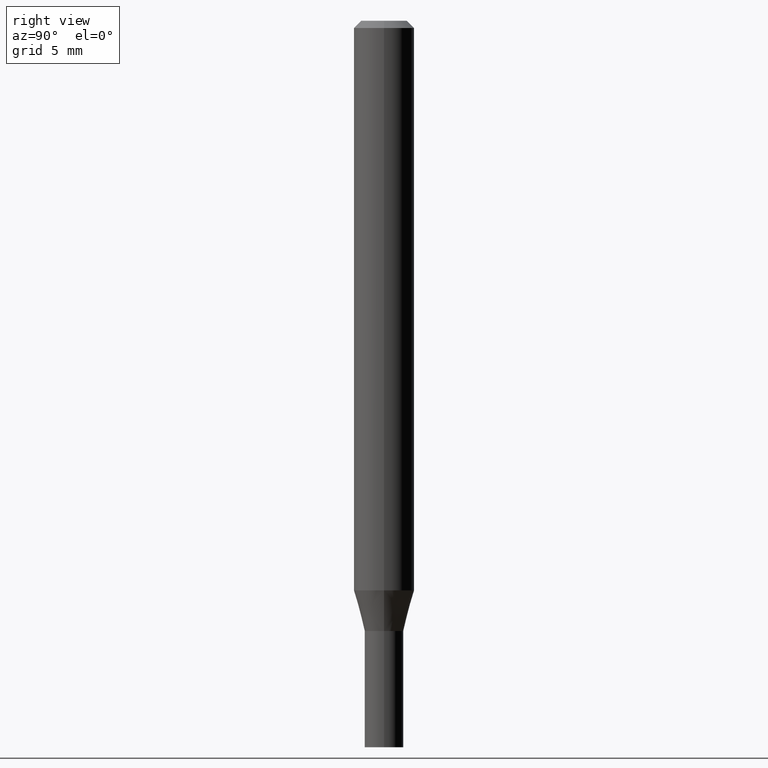
[diagram: clean part render]
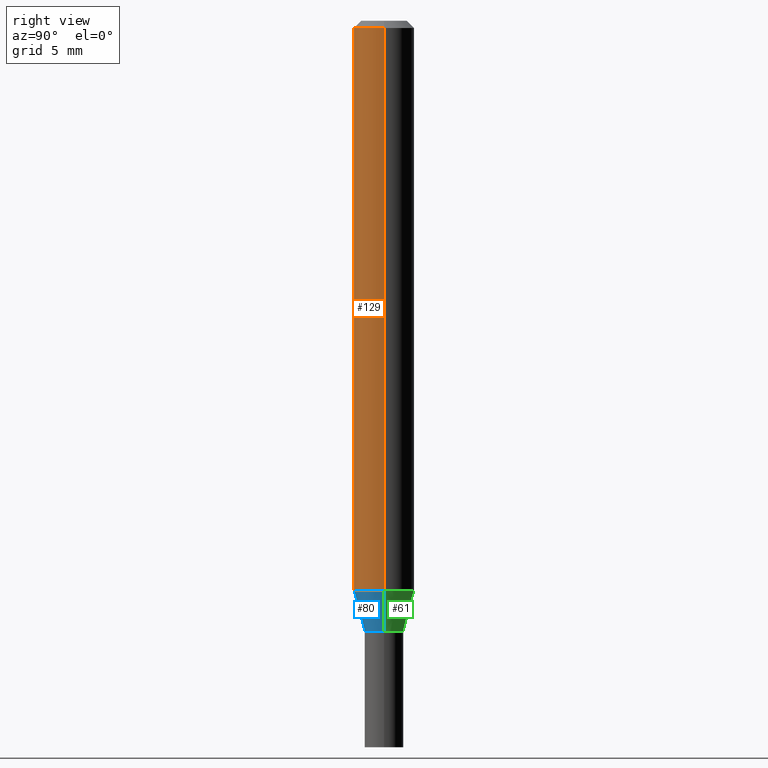
[diagram: same view with three faces highlighted in distinct colors, each labeled with its STEP entity id]
A machine part, right view with three faces highlighted in distinct colors.
Their STEP definitions:

[orange] entity #129 — the highlighted cylindrical surface (edge-blend (fillet) strip) has radius 1.5875 mm, axis along (-0, 0, 1).
#17 = EDGE_CURVE ( 'NONE', #111, #280, #323, .T. ) ;
#32 = CARTESIAN_POINT ( 'NONE',  ( -0.06250000000000000000, -1.635138303972230884E-15, -0.01499999999999999944 ) ) ;
#41 = CARTESIAN_POINT ( 'NONE',  ( 2.875941884550600352E-29, -4.106082807561939527E-15, -1.176028856829701263 ) ) ;
#58 = VERTEX_POINT ( 'NONE', #395 ) ;
#65 = VERTEX_POINT ( 'NONE', #32 ) ;
#67 = CARTESIAN_POINT ( 'NONE',  ( -0.06250000000000000000, 4.440892098500626162E-16, -3.074334431409316114E-30 ) ) ;
#70 = DIRECTION ( 'NONE',  ( -2.445468806185136877E-29, 3.491481338843145188E-15, 1.000000000000000000 ) ) ;
#82 = DIRECTION ( 'NONE',  ( 1.000000000000000000, -6.982962677686270655E-15, 0.000000000000000000 ) ) ;
#91 = DIRECTION ( 'NONE',  ( -2.445468806185136597E-29, 3.491481338843145583E-15, 1.000000000000000000 ) ) ;
#97 = VECTOR ( 'NONE', #175, 39.37007874015748143 ) ;
#111 = VERTEX_POINT ( 'NONE', #218 ) ;
#113 = ORIENTED_EDGE ( 'NONE', *, *, #224, .F. ) ;
#127 = ORIENTED_EDGE ( 'NONE', *, *, #17, .T. ) ;
#128 = DIRECTION ( 'NONE',  ( -2.445468806185136597E-29, 3.491481338843145583E-15, 1.000000000000000000 ) ) ;
#129 = ADVANCED_FACE ( 'NONE', ( #455 ), #297, .T. ) ;
#131 = DIRECTION ( 'NONE',  ( -2.445468806185136597E-29, 3.491481338843145583E-15, 1.000000000000000000 ) ) ;
#166 = AXIS2_PLACEMENT_3D ( 'NONE', #364, #91, #436 ) ;
#175 = DIRECTION ( 'NONE',  ( -2.445468806185136877E-29, 3.491481338843145188E-15, 1.000000000000000000 ) ) ;
#180 = ORIENTED_EDGE ( 'NONE', *, *, #188, .T. ) ;
#181 = ORIENTED_EDGE ( 'NONE', *, *, #450, .F. ) ;
#184 = EDGE_LOOP ( 'NONE', ( #181, #180, #127, #113 ) ) ;
#188 = EDGE_CURVE ( 'NONE', #58, #111, #245, .T. ) ;
#218 = CARTESIAN_POINT ( 'NONE',  ( 0.06250000000000000000, -4.542517974917331985E-15, -1.176028856829701263 ) ) ;
#224 = EDGE_CURVE ( 'NONE', #65, #280, #454, .T. ) ;
#227 = VECTOR ( 'NONE', #70, 39.37007874015748143 ) ;
#230 = CARTESIAN_POINT ( 'NONE',  ( 0.000000000000000000, 0.000000000000000000, 0.000000000000000000 ) ) ;
#245 = CIRCLE ( 'NONE', #275, 0.06250000000000000000 ) ;
#271 = DIRECTION ( 'NONE',  ( 1.000000000000000000, -6.982962677686266711E-15, 4.876176775795935793E-29 ) ) ;
#275 = AXIS2_PLACEMENT_3D ( 'NONE', #41, #131, #82 ) ;
#280 = VERTEX_POINT ( 'NONE', #342 ) ;
#297 = CYLINDRICAL_SURFACE ( 'NONE', #305, 0.06250000000000000000 ) ;
#305 = AXIS2_PLACEMENT_3D ( 'NONE', #230, #128, #271 ) ;
#323 = LINE ( 'NONE', #427, #227 ) ;
#342 = CARTESIAN_POINT ( 'NONE',  ( 0.06250000000000000000, -4.888073874380388472E-16, -0.01499999999999999944 ) ) ;
#364 = CARTESIAN_POINT ( 'NONE',  ( 3.668203209277705088E-31, -5.237222008264718399E-17, -0.01499999999999999944 ) ) ;
#382 = LINE ( 'NONE', #67, #97 ) ;
#395 = CARTESIAN_POINT ( 'NONE',  ( -0.06250000000000000000, -3.661993597711876911E-15, -1.176028856829701263 ) ) ;
#427 = CARTESIAN_POINT ( 'NONE',  ( 0.06250000000000000000, -4.364351673553916694E-16, 3.047610484872459871E-30 ) ) ;
#436 = DIRECTION ( 'NONE',  ( 1.000000000000000000, -6.982962677686266711E-15, 0.000000000000000000 ) ) ;
#450 = EDGE_CURVE ( 'NONE', #58, #65, #382, .T. ) ;
#454 = CIRCLE ( 'NONE', #166, 0.06250000000000000000 ) ;
#455 = FACE_OUTER_BOUND ( 'NONE', #184, .T. ) ;

[blue] entity #80 — the highlighted conical surface has half-angle 15 deg.
#5 = VERTEX_POINT ( 'NONE', #423 ) ;
#38 = CIRCLE ( 'NONE', #381, 0.04000000000000019512 ) ;
#40 = EDGE_CURVE ( 'NONE', #460, #111, #256, .T. ) ;
#41 = CARTESIAN_POINT ( 'NONE',  ( 2.875941884550600352E-29, -4.106082807561939527E-15, -1.176028856829701263 ) ) ;
#58 = VERTEX_POINT ( 'NONE', #395 ) ;
#60 = LINE ( 'NONE', #104, #441 ) ;
#71 = ORIENTED_EDGE ( 'NONE', *, *, #414, .F. ) ;
#79 = DIRECTION ( 'NONE',  ( -2.445468806185136597E-29, 3.491481338843145583E-15, 1.000000000000000000 ) ) ;
#80 = ADVANCED_FACE ( 'NONE', ( #147 ), #298, .T. ) ;
#82 = DIRECTION ( 'NONE',  ( 1.000000000000000000, -6.982962677686270655E-15, 0.000000000000000000 ) ) ;
#104 = CARTESIAN_POINT ( 'NONE',  ( -0.04000000000000019512, -4.115049392638323005E-15, -1.260000000000000231 ) ) ;
#111 = VERTEX_POINT ( 'NONE', #218 ) ;
#131 = DIRECTION ( 'NONE',  ( -2.445468806185136597E-29, 3.491481338843145583E-15, 1.000000000000000000 ) ) ;
#147 = FACE_OUTER_BOUND ( 'NONE', #361, .T. ) ;
#148 = ORIENTED_EDGE ( 'NONE', *, *, #273, .T. ) ;
#153 = DIRECTION ( 'NONE',  ( -2.445468806185136597E-29, 3.491481338843145583E-15, 1.000000000000000000 ) ) ;
#188 = EDGE_CURVE ( 'NONE', #58, #111, #245, .T. ) ;
#214 = DIRECTION ( 'NONE',  ( -0.2588190451025211281, 5.211531920934548675E-15, 0.9659258262890682012 ) ) ;
#215 = CARTESIAN_POINT ( 'NONE',  ( 0.04000000000000019512, -4.678584994049816524E-15, -1.260000000000000231 ) ) ;
#218 = CARTESIAN_POINT ( 'NONE',  ( 0.06250000000000000000, -4.542517974917331985E-15, -1.176028856829701263 ) ) ;
#245 = CIRCLE ( 'NONE', #275, 0.06250000000000000000 ) ;
#254 = VECTOR ( 'NONE', #392, 39.37007874015748143 ) ;
#255 = CARTESIAN_POINT ( 'NONE',  ( 0.04000000000000019512, -4.678584994049816524E-15, -1.260000000000000231 ) ) ;
#256 = LINE ( 'NONE', #215, #254 ) ;
#267 = CARTESIAN_POINT ( 'NONE',  ( 3.081290695793272291E-29, -4.399266486942364120E-15, -1.260000000000000231 ) ) ;
#273 = EDGE_CURVE ( 'NONE', #5, #460, #38, .T. ) ;
#275 = AXIS2_PLACEMENT_3D ( 'NONE', #41, #131, #82 ) ;
#291 = DIRECTION ( 'NONE',  ( 1.000000000000000000, -6.982962677686274599E-15, 0.000000000000000000 ) ) ;
#298 = CONICAL_SURFACE ( 'NONE', #344, 0.04000000000000019512, 0.2617993877991497964 ) ;
#344 = AXIS2_PLACEMENT_3D ( 'NONE', #463, #153, #291 ) ;
#356 = ORIENTED_EDGE ( 'NONE', *, *, #40, .T. ) ;
#361 = EDGE_LOOP ( 'NONE', ( #71, #148, #356, #425 ) ) ;
#362 = DIRECTION ( 'NONE',  ( 1.000000000000000000, -6.982962677686274599E-15, 0.000000000000000000 ) ) ;
#381 = AXIS2_PLACEMENT_3D ( 'NONE', #267, #79, #362 ) ;
#392 = DIRECTION ( 'NONE',  ( 0.2588190451025211281, 1.565188264969623940E-15, 0.9659258262890682012 ) ) ;
#395 = CARTESIAN_POINT ( 'NONE',  ( -0.06250000000000000000, -3.661993597711876911E-15, -1.176028856829701263 ) ) ;
#414 = EDGE_CURVE ( 'NONE', #5, #58, #60, .T. ) ;
#423 = CARTESIAN_POINT ( 'NONE',  ( -0.04000000000000019512, -3.888521495175099563E-15, -1.260000000000000231 ) ) ;
#425 = ORIENTED_EDGE ( 'NONE', *, *, #188, .F. ) ;
#441 = VECTOR ( 'NONE', #214, 39.37007874015748143 ) ;
#460 = VERTEX_POINT ( 'NONE', #255 ) ;
#463 = CARTESIAN_POINT ( 'NONE',  ( 3.081290695793272291E-29, -4.399266486942364120E-15, -1.260000000000000231 ) ) ;

[green] entity #61 — the highlighted conical surface has half-angle 15 deg.
#5 = VERTEX_POINT ( 'NONE', #423 ) ;
#21 = ORIENTED_EDGE ( 'NONE', *, *, #171, .T. ) ;
#40 = EDGE_CURVE ( 'NONE', #460, #111, #256, .T. ) ;
#58 = VERTEX_POINT ( 'NONE', #395 ) ;
#60 = LINE ( 'NONE', #104, #441 ) ;
#61 = ADVANCED_FACE ( 'NONE', ( #182 ), #95, .T. ) ;
#68 = DIRECTION ( 'NONE',  ( -2.445468806185136597E-29, 3.491481338843145583E-15, 1.000000000000000000 ) ) ;
#77 = CARTESIAN_POINT ( 'NONE',  ( 3.081290695793272291E-29, -4.399266486942364120E-15, -1.260000000000000231 ) ) ;
#95 = CONICAL_SURFACE ( 'NONE', #236, 0.04000000000000019512, 0.2617993877991497964 ) ;
#104 = CARTESIAN_POINT ( 'NONE',  ( -0.04000000000000019512, -4.115049392638323005E-15, -1.260000000000000231 ) ) ;
#111 = VERTEX_POINT ( 'NONE', #218 ) ;
#117 = EDGE_CURVE ( 'NONE', #111, #58, #374, .T. ) ;
#136 = ORIENTED_EDGE ( 'NONE', *, *, #414, .T. ) ;
#171 = EDGE_CURVE ( 'NONE', #460, #5, #346, .T. ) ;
#182 = FACE_OUTER_BOUND ( 'NONE', #213, .T. ) ;
#185 = DIRECTION ( 'NONE',  ( 1.000000000000000000, -6.982962677686274599E-15, 0.000000000000000000 ) ) ;
#213 = EDGE_LOOP ( 'NONE', ( #21, #136, #394, #252 ) ) ;
#214 = DIRECTION ( 'NONE',  ( -0.2588190451025211281, 5.211531920934548675E-15, 0.9659258262890682012 ) ) ;
#215 = CARTESIAN_POINT ( 'NONE',  ( 0.04000000000000019512, -4.678584994049816524E-15, -1.260000000000000231 ) ) ;
#218 = CARTESIAN_POINT ( 'NONE',  ( 0.06250000000000000000, -4.542517974917331985E-15, -1.176028856829701263 ) ) ;
#236 = AXIS2_PLACEMENT_3D ( 'NONE', #77, #359, #185 ) ;
#252 = ORIENTED_EDGE ( 'NONE', *, *, #40, .F. ) ;
#254 = VECTOR ( 'NONE', #392, 39.37007874015748143 ) ;
#255 = CARTESIAN_POINT ( 'NONE',  ( 0.04000000000000019512, -4.678584994049816524E-15, -1.260000000000000231 ) ) ;
#256 = LINE ( 'NONE', #215, #254 ) ;
#257 = AXIS2_PLACEMENT_3D ( 'NONE', #403, #303, #274 ) ;
#274 = DIRECTION ( 'NONE',  ( 1.000000000000000000, -6.982962677686274599E-15, 0.000000000000000000 ) ) ;
#303 = DIRECTION ( 'NONE',  ( -2.445468806185136597E-29, 3.491481338843145583E-15, 1.000000000000000000 ) ) ;
#316 = DIRECTION ( 'NONE',  ( 1.000000000000000000, -6.982962677686270655E-15, 0.000000000000000000 ) ) ;
#346 = CIRCLE ( 'NONE', #257, 0.04000000000000019512 ) ;
#359 = DIRECTION ( 'NONE',  ( -2.445468806185136597E-29, 3.491481338843145583E-15, 1.000000000000000000 ) ) ;
#374 = CIRCLE ( 'NONE', #413, 0.06250000000000000000 ) ;
#387 = CARTESIAN_POINT ( 'NONE',  ( 2.875941884550600352E-29, -4.106082807561939527E-15, -1.176028856829701263 ) ) ;
#392 = DIRECTION ( 'NONE',  ( 0.2588190451025211281, 1.565188264969623940E-15, 0.9659258262890682012 ) ) ;
#394 = ORIENTED_EDGE ( 'NONE', *, *, #117, .F. ) ;
#395 = CARTESIAN_POINT ( 'NONE',  ( -0.06250000000000000000, -3.661993597711876911E-15, -1.176028856829701263 ) ) ;
#403 = CARTESIAN_POINT ( 'NONE',  ( 3.081290695793272291E-29, -4.399266486942364120E-15, -1.260000000000000231 ) ) ;
#413 = AXIS2_PLACEMENT_3D ( 'NONE', #387, #68, #316 ) ;
#414 = EDGE_CURVE ( 'NONE', #5, #58, #60, .T. ) ;
#423 = CARTESIAN_POINT ( 'NONE',  ( -0.04000000000000019512, -3.888521495175099563E-15, -1.260000000000000231 ) ) ;
#441 = VECTOR ( 'NONE', #214, 39.37007874015748143 ) ;
#460 = VERTEX_POINT ( 'NONE', #255 ) ;